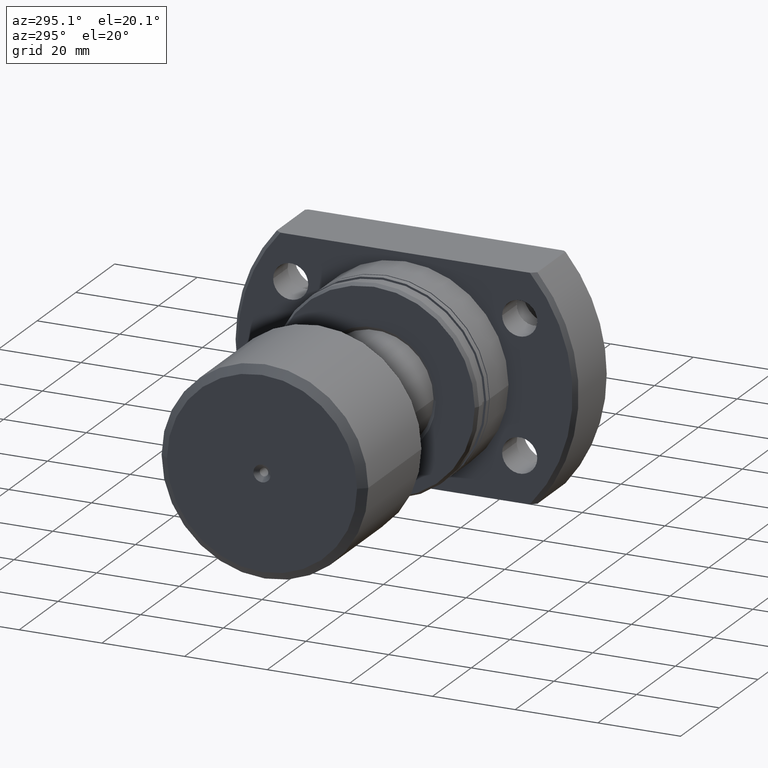
[diagram: clean part render]
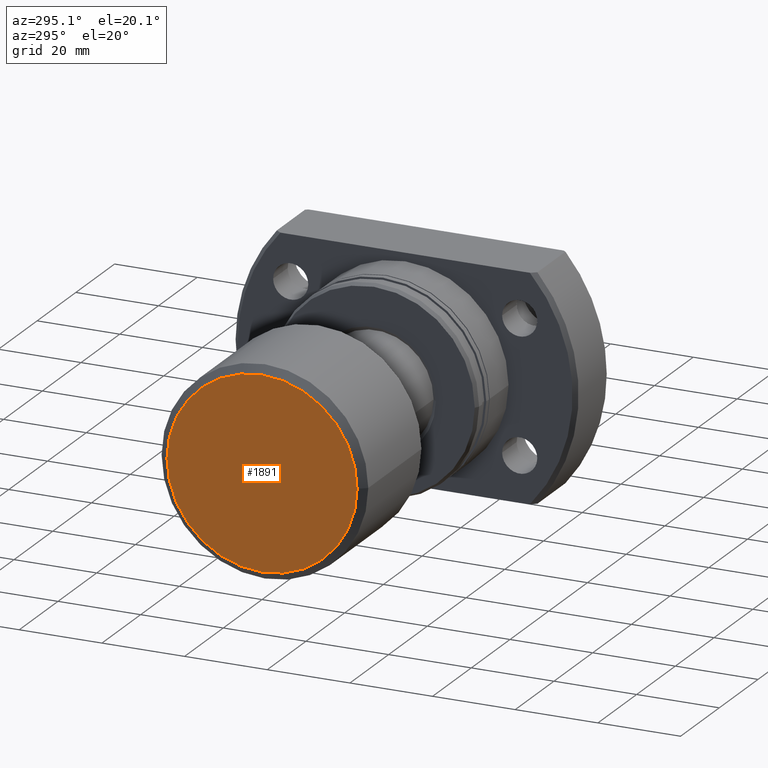
[diagram: same view with one face highlighted and labeled with its STEP entity id]
A machine part, auxiliary view. The second image highlights one B-rep face of the part: STEP entity #1891.
In plain terms, the highlighted planar face has unit normal (-1, -0, 0).
Its self-contained STEP definition (entity closure, byte-faithful):
#103 = EDGE_LOOP ( 'NONE', ( #1563, #978 ) ) ;
#215 = DIRECTION ( 'NONE',  ( 1.069542322069065339E-17, -1.000000000000000000, 0.000000000000000000 ) ) ;
#366 = EDGE_CURVE ( 'NONE', #801, #3670, #3254, .T. ) ;
#424 = CARTESIAN_POINT ( 'NONE',  ( 1.285346451981513596E-15, 2.541142108230766946E-16, -2.075000000000007283 ) ) ;
#530 = FACE_BOUND ( 'NONE', #103, .T. ) ;
#551 = DIRECTION ( 'NONE',  ( -1.000000000000000000, -1.069542322069065801E-17, -0.000000000000000000 ) ) ;
#605 = CIRCLE ( 'NONE', #3087, 23.00000000000000000 ) ;
#684 = CARTESIAN_POINT ( 'NONE',  ( 1.285346451981513596E-15, 0.000000000000000000, 0.000000000000000000 ) ) ;
#779 = DIRECTION ( 'NONE',  ( 1.069542322069065801E-17, -1.000000000000000000, 0.000000000000000000 ) ) ;
#801 = VERTEX_POINT ( 'NONE', #3472 ) ;
#810 = DIRECTION ( 'NONE',  ( 1.069542322069061487E-17, -1.000000000000000000, 0.000000000000000000 ) ) ;
#894 = DIRECTION ( 'NONE',  ( -1.000000000000000000, -1.069542322069065801E-17, 0.000000000000000000 ) ) ;
#978 = ORIENTED_EDGE ( 'NONE', *, *, #1822, .T. ) ;
#1180 = CARTESIAN_POINT ( 'NONE',  ( 2.816687638038912352E-15, -23.00000000000000000, 2.939152317953647894E-15 ) ) ;
#1221 = ORIENTED_EDGE ( 'NONE', *, *, #1994, .T. ) ;
#1255 = DIRECTION ( 'NONE',  ( 1.000000000000000000, 1.069542322069065801E-17, 0.000000000000000000 ) ) ;
#1563 = ORIENTED_EDGE ( 'NONE', *, *, #366, .T. ) ;
#1608 = AXIS2_PLACEMENT_3D ( 'NONE', #1663, #894, #779 ) ;
#1649 = DIRECTION ( 'NONE',  ( -1.000000000000000000, -1.069542322069065801E-17, -0.000000000000000000 ) ) ;
#1663 = CARTESIAN_POINT ( 'NONE',  ( 1.285346451981513596E-15, 1.374732428915543273E-32, 0.000000000000000000 ) ) ;
#1695 = VERTEX_POINT ( 'NONE', #1180 ) ;
#1731 = CIRCLE ( 'NONE', #3632, 23.00000000000000000 ) ;
#1822 = EDGE_CURVE ( 'NONE', #3670, #801, #2725, .T. ) ;
#1889 = DIRECTION ( 'NONE',  ( 1.069542322069061487E-17, -1.000000000000000000, 0.000000000000000000 ) ) ;
#1891 = ADVANCED_FACE ( 'NONE', ( #530, #2767 ), #2247, .T. ) ;
#1958 = CARTESIAN_POINT ( 'NONE',  ( 2.570692903963027191E-15, 2.749464857831086545E-32, 0.000000000000000000 ) ) ;
#1994 = EDGE_CURVE ( 'NONE', #1695, #2699, #1731, .T. ) ;
#2191 = AXIS2_PLACEMENT_3D ( 'NONE', #684, #1255, #1889 ) ;
#2217 = DIRECTION ( 'NONE',  ( 1.069542322069065339E-17, -1.000000000000000000, 0.000000000000000000 ) ) ;
#2247 = PLANE ( 'NONE',  #1608 ) ;
#2460 = EDGE_LOOP ( 'NONE', ( #2619, #1221 ) ) ;
#2619 = ORIENTED_EDGE ( 'NONE', *, *, #2889, .T. ) ;
#2699 = VERTEX_POINT ( 'NONE', #3572 ) ;
#2712 = AXIS2_PLACEMENT_3D ( 'NONE', #2817, #3349, #810 ) ;
#2725 = CIRCLE ( 'NONE', #2191, 2.075000000000007283 ) ;
#2767 = FACE_OUTER_BOUND ( 'NONE', #2460, .T. ) ;
#2817 = CARTESIAN_POINT ( 'NONE',  ( 1.285346451981513596E-15, 0.000000000000000000, 0.000000000000000000 ) ) ;
#2889 = EDGE_CURVE ( 'NONE', #2699, #1695, #605, .T. ) ;
#3087 = AXIS2_PLACEMENT_3D ( 'NONE', #3626, #1649, #2217 ) ;
#3254 = CIRCLE ( 'NONE', #2712, 2.075000000000007283 ) ;
#3349 = DIRECTION ( 'NONE',  ( 1.000000000000000000, 1.069542322069065801E-17, 0.000000000000000000 ) ) ;
#3472 = CARTESIAN_POINT ( 'NONE',  ( 1.285346451981513596E-15, 0.000000000000000000, 2.075000000000007283 ) ) ;
#3572 = CARTESIAN_POINT ( 'NONE',  ( 2.324698169887142426E-15, 23.00000000000000000, 0.000000000000000000 ) ) ;
#3626 = CARTESIAN_POINT ( 'NONE',  ( 2.570692903963027191E-15, 2.749464857831086545E-32, 0.000000000000000000 ) ) ;
#3632 = AXIS2_PLACEMENT_3D ( 'NONE', #1958, #551, #215 ) ;
#3670 = VERTEX_POINT ( 'NONE', #424 ) ;